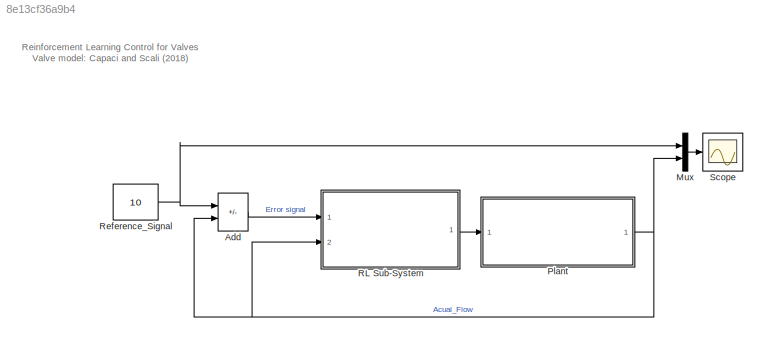
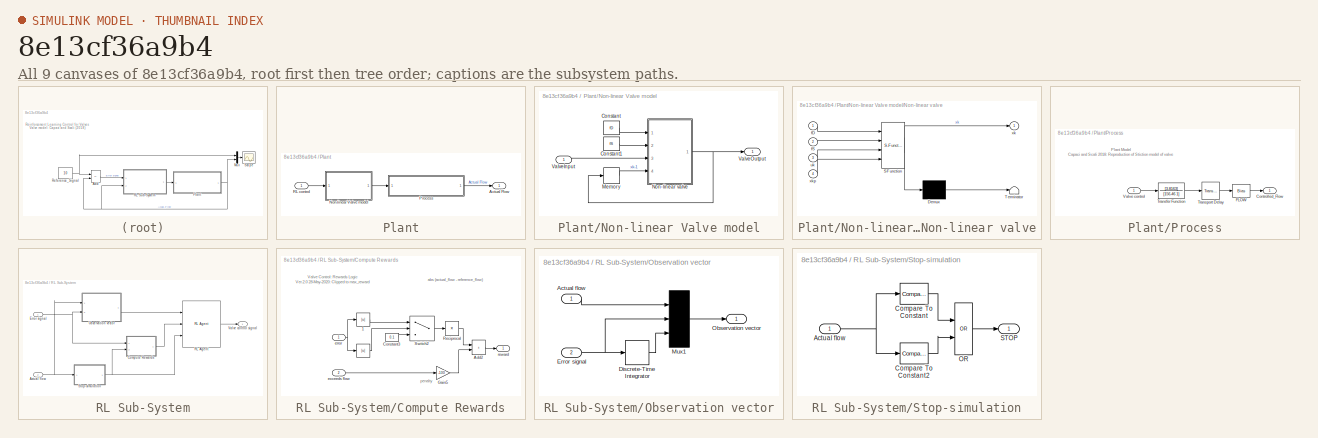
[diagram: thumbnail index - all 9 canvases of the model, root first then tree order]
MODEL slx_8e13cf36a9b4
KIND model
CONFIG AbsTol = auto
CONFIG EnableMultiTasking = off
CONFIG FixedStep = auto
CONFIG MaxStep = auto
CONFIG MinStep = auto
CONFIG RelTol = 1e-3
CONFIG SampleTimeConstraint = Unconstrained
CONFIG SolverName = VariableStepAuto
CONFIG StartTime = 0.0
CONFIG StopTime = 2000
BLOCK [Sum] Add
  IconShape = rectangular
  Inputs = +-
  Ports = [2, 1]
BLOCK [Mux] Mux
  DisplayOption = bar
  Inputs = 2
  Ports = [2, 1]
BLOCK [SubSystem] Plant
  Ports = [1, 1]
  RequestExecContextInheritance = off
BLOCK [Outport] Plant/Actual Flow
  VectorParamsAs1DForOutWhenUnconnected = off
BLOCK [SubSystem] Plant/Non-linear Valve model
  Ports = [1, 1]
  RequestExecContextInheritance = off
BLOCK [Constant] Plant/Non-linear Valve model/Constant
  Value = fD
BLOCK [Constant] Plant/Non-linear Valve model/Constant1
  Value = fS
BLOCK [Memory] Plant/Non-linear Valve model/Memory
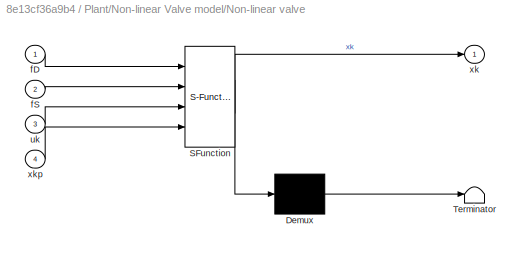
BLOCK [SubSystem] Plant/Non-linear Valve model/Non-linear valve
  ErrorFcn = Stateflow.Translate.translate
  PermitHierarchicalResolution = ExplicitOnly
  Ports = [4, 1]
  RequestExecContextInheritance = off
  SFBlockType = MATLAB Function
  TreatAsAtomicUnit = on
BLOCK [Demux] Plant/Non-linear Valve model/Non-linear valve/ Demux 
  Outputs = 1
  Ports = [1, 1]
BLOCK [S-Function] Plant/Non-linear Valve model/Non-linear valve/ SFunction 
  EnableBusSupport = on
  FunctionName = sf_sfun
  PortCounts = [4 2]
  Ports = [4, 2]
  SFcnIsStateOwnerBlock = off
  SFunctionDeploymentMode = off
  Tag = Stateflow S-Function 2
BLOCK [Terminator] Plant/Non-linear Valve model/Non-linear valve/ Terminator 
BLOCK [Inport] Plant/Non-linear Valve model/Non-linear valve/fD
BLOCK [Inport] Plant/Non-linear Valve model/Non-linear valve/fS
  Port = 2
BLOCK [Inport] Plant/Non-linear Valve model/Non-linear valve/uk
  Port = 3
BLOCK [Outport] Plant/Non-linear Valve model/Non-linear valve/xk
  VectorParamsAs1DForOutWhenUnconnected = off
BLOCK [Inport] Plant/Non-linear Valve model/Non-linear valve/xkp
  Port = 4
BLOCK [Inport] Plant/Non-linear Valve model/ValveInput
BLOCK [Outport] Plant/Non-linear Valve model/ValveOutput
  VectorParamsAs1DForOutWhenUnconnected = off
BLOCK [SubSystem] Plant/Process
  Ports = [1, 1]
  RequestExecContextInheritance = off
BLOCK [Outport] Plant/Process/Controlled_Flow
  VectorParamsAs1DForOutWhenUnconnected = off
BLOCK [Bias] Plant/Process/FLOW
  SaturateOnIntegerOverflow = off
BLOCK [TransferFcn] Plant/Process/Transfer Function
  Denominator = [156.46 1]
  Numerator = [3.8163]
BLOCK [TransportDelay] Plant/Process/Transport Delay 
  DelayTime = TIME_DELAY
  Ports = [1, 1]
BLOCK [Inport] Plant/Process/Valve control
BLOCK [Inport] Plant/RL control
BLOCK [SubSystem] RL Sub-System
  Ports = [2, 1]
  RequestExecContextInheritance = off
BLOCK [Inport] RL Sub-System/Actual flow
  Port = 2
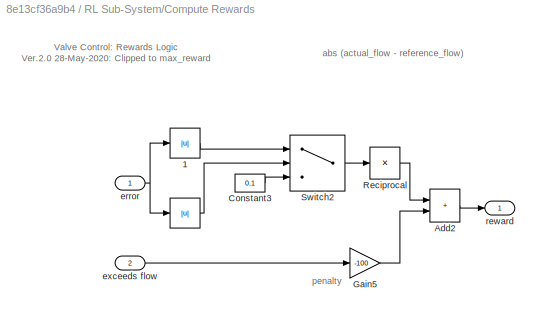
BLOCK [SubSystem] RL Sub-System/Compute Rewards
  Ports = [2, 1]
  RequestExecContextInheritance = off
BLOCK [Abs] RL Sub-System/Compute Rewards/ 
  SaturateOnIntegerOverflow = off
BLOCK [Abs] RL Sub-System/Compute Rewards/ 1
  SaturateOnIntegerOverflow = off
BLOCK [Sum] RL Sub-System/Compute Rewards/Add2
  IconShape = rectangular
  Ports = [2, 1]
BLOCK [Constant] RL Sub-System/Compute Rewards/Constant3
  Value = 0.1
BLOCK [Gain] RL Sub-System/Compute Rewards/Gain5
  Gain = -100
BLOCK [Product] RL Sub-System/Compute Rewards/Reciprocal
  Inputs = /
  Ports = [1, 1]
BLOCK [Switch] RL Sub-System/Compute Rewards/Switch2
  Criteria = u2 > Threshold
  InputSameDT = off
  SaturateOnIntegerOverflow = off
  Threshold = 0.1
BLOCK [Inport] RL Sub-System/Compute Rewards/error
BLOCK [Inport] RL Sub-System/Compute Rewards/exceeds flow
  Port = 2
BLOCK [Outport] RL Sub-System/Compute Rewards/reward
  VectorParamsAs1DForOutWhenUnconnected = off
BLOCK [Inport] RL Sub-System/Error signal
BLOCK [SubSystem] RL Sub-System/Observation vector
  Ports = [2, 1]
  RequestExecContextInheritance = off
BLOCK [Inport] RL Sub-System/Observation vector/Actual flow
BLOCK [DiscreteIntegrator] RL Sub-System/Observation vector/Discrete-Time Integrator
  ICPrevOutput = DiscIntNeverNeededParam
  ICPrevScaledInput = DiscIntNeverNeededParam
  InitialConditionSetting = Auto
  Ports = [1, 1]
  SampleTime = Ts
BLOCK [Inport] RL Sub-System/Observation vector/Error signal
  Port = 2
BLOCK [Mux] RL Sub-System/Observation vector/Mux1
  DisplayOption = bar
  Inputs = 3
  Ports = [3, 1]
BLOCK [Outport] RL Sub-System/Observation vector/Observation vector
  VectorParamsAs1DForOutWhenUnconnected = off
BLOCK [Reference] RL Sub-System/RL Agent  REF=rllib/RL Agent
  Ports = [3, 1]
  SourceBlock = rllib/RL Agent
  SourceProductBaseCode = RL
  SourceType = RL Agent
BLOCK [SubSystem] RL Sub-System/Stop-simulation
  Ports = [1, 1]
  RequestExecContextInheritance = off
BLOCK [Inport] RL Sub-System/Stop-simulation/Actual flow
BLOCK [Reference] RL Sub-System/Stop-simulation/Compare To Constant  REF=simulink/Logic and Bit
Operations/Compare
To Constant
  Ports = [1, 1]
  SourceBlock = simulink/Logic and Bit\nOperations/Compare\nTo Constant
  SourceProductBaseCode = SL
  SourceType = Compare To Constant
BLOCK [Reference] RL Sub-System/Stop-simulation/Compare To Constant2  REF=simulink/Logic and Bit
Operations/Compare
To Constant
  Ports = [1, 1]
  SourceBlock = simulink/Logic and Bit\nOperations/Compare\nTo Constant
  SourceProductBaseCode = SL
  SourceType = Compare To Constant
BLOCK [Logic] RL Sub-System/Stop-simulation/OR
  AllPortsSameDT = off
  IconShape = distinctive
  Operator = OR
  OutDataTypeStr = boolean
  Ports = [2, 1]
BLOCK [Outport] RL Sub-System/Stop-simulation/STOP
  VectorParamsAs1DForOutWhenUnconnected = off
BLOCK [Outport] RL Sub-System/Valve control signal
  VectorParamsAs1DForOutWhenUnconnected = off
BLOCK [Constant] Reference_Signal
  Value = 10
BLOCK [Scope] Scope
  Floating = off
  NumInputPorts = 1
  Ports = [1]
  ScopeSpecificationString = Simulink.scopes.TimeScopeBlockCfg('CurrentConfiguration', extmgr.ConfigurationSet(extmgr.Configuration('Core','General UI',true,'FigureColor',[0.941176470588235 0.941176470588235 0.941176470588235],'ShowStatusbar',false),extmgr.Configuration('Core','Source UI',true),extmgr.Configuration('Sources','WiredSimulink',true),extmgr.Configuration('Visuals','Time Domain',true,'SerializedDisplays',{struct('...<+2124ch>
ANNOTATION (root): Reinforcement Learning Control for Valves Valve model: Capaci and Scali (2018)
ANNOTATION Plant/Process: Plant Model Capaci and Scali 2018 : Reproduction of Stiction model of valve
ANNOTATION RL Sub-System/Compute Rewards: Valve Control: Rewards Logic Ver.2.0 28-May-2020: Clipped to max_reward
ANNOTATION RL Sub-System/Compute Rewards: abs (actual_flow - reference_flow)
ANNOTATION RL Sub-System/Compute Rewards: penalty
LINE Add:1 -> RL Sub-System:1
LINE Mux:1 -> Scope:1
LINE Plant/Non-linear Valve model/Constant1:1 -> Plant/Non-linear Valve model/Non-linear valve:2
LINE Plant/Non-linear Valve model/Constant:1 -> Plant/Non-linear Valve model/Non-linear valve:1
LINE Plant/Non-linear Valve model/Memory:1 -> Plant/Non-linear Valve model/Non-linear valve:4
NET Plant/Non-linear Valve model/Non-linear valve:1 -> Plant/Non-linear Valve model/Memory:1, Plant/Non-linear Valve model/ValveOutput:1
LINE Plant/Non-linear Valve model/ValveInput:1 -> Plant/Non-linear Valve model/Non-linear valve:3
LINE Plant/Non-linear Valve model:1 -> Plant/Process:1
LINE Plant/Process/FLOW:1 -> Plant/Process/Controlled_Flow:1
LINE Plant/Process/Transfer Function:1 -> Plant/Process/Transport Delay :1
LINE Plant/Process/Transport Delay :1 -> Plant/Process/FLOW:1
LINE Plant/Process/Valve control:1 -> Plant/Process/Transfer Function:1
LINE Plant/Process:1 -> Plant/Actual Flow:1
LINE Plant/RL control:1 -> Plant/Non-linear Valve model:1
NET Plant:1 -> Add:2, Mux:2, RL Sub-System:2
NET RL Sub-System/Actual flow:1 -> RL Sub-System/Observation vector:1, RL Sub-System/Stop-simulation:1
LINE RL Sub-System/Compute Rewards/ 1:1 -> RL Sub-System/Compute Rewards/Switch2:1
LINE RL Sub-System/Compute Rewards/ :1 -> RL Sub-System/Compute Rewards/Switch2:2
LINE RL Sub-System/Compute Rewards/Add2:1 -> RL Sub-System/Compute Rewards/reward:1
LINE RL Sub-System/Compute Rewards/Constant3:1 -> RL Sub-System/Compute Rewards/Switch2:3
LINE RL Sub-System/Compute Rewards/Gain5:1 -> RL Sub-System/Compute Rewards/Add2:2
LINE RL Sub-System/Compute Rewards/Reciprocal:1 -> RL Sub-System/Compute Rewards/Add2:1
LINE RL Sub-System/Compute Rewards/Switch2:1 -> RL Sub-System/Compute Rewards/Reciprocal:1
NET RL Sub-System/Compute Rewards/error:1 -> RL Sub-System/Compute Rewards/ 1:1, RL Sub-System/Compute Rewards/ :1
LINE RL Sub-System/Compute Rewards/exceeds flow:1 -> RL Sub-System/Compute Rewards/Gain5:1
LINE RL Sub-System/Compute Rewards:1 -> RL Sub-System/RL Agent:2
NET RL Sub-System/Error signal:1 -> RL Sub-System/Compute Rewards:1, RL Sub-System/Observation vector:2
LINE RL Sub-System/Observation vector/Actual flow:1 -> RL Sub-System/Observation vector/Mux1:1
LINE RL Sub-System/Observation vector/Discrete-Time Integrator:1 -> RL Sub-System/Observation vector/Mux1:3
NET RL Sub-System/Observation vector/Error signal:1 -> RL Sub-System/Observation vector/Discrete-Time Integrator:1, RL Sub-System/Observation vector/Mux1:2
LINE RL Sub-System/Observation vector/Mux1:1 -> RL Sub-System/Observation vector/Observation vector:1
LINE RL Sub-System/Observation vector:1 -> RL Sub-System/RL Agent:1
LINE RL Sub-System/RL Agent:1 -> RL Sub-System/Valve control signal:1
NET RL Sub-System/Stop-simulation/Actual flow:1 -> RL Sub-System/Stop-simulation/Compare To Constant2:1, RL Sub-System/Stop-simulation/Compare To Constant:1
LINE RL Sub-System/Stop-simulation/Compare To Constant2:1 -> RL Sub-System/Stop-simulation/OR:2
LINE RL Sub-System/Stop-simulation/Compare To Constant:1 -> RL Sub-System/Stop-simulation/OR:1
LINE RL Sub-System/Stop-simulation/OR:1 -> RL Sub-System/Stop-simulation/STOP:1
NET RL Sub-System/Stop-simulation:1 -> RL Sub-System/Compute Rewards:2, RL Sub-System/RL Agent:3
LINE RL Sub-System:1 -> Plant:1
NET Reference_Signal:1 -> Add:1, Mux:1
note: NET lines group one-source signal fan-out (src -> all destinations, sorted); 1:1 wires keep LINE
CHART Plant/Non-linear Valve model/Non-linear valve states=1 transitions=1
  STATE_LABEL 'eML_blk_kernel()'
  STATE_LABEL 'SCRIPT:\nfunction xk = fcn(fD, fS, uk, xkp)\n% -------------------------------------------------------------------------\n% TRAINING circuit for DDPG-RL Agent | Plant Model (RLVC4 | 09-Oct-2020)\n% Non-Linear valve model: Capaci and Scali (2018)\n% -------------------------------------------------------------------------\n% uk - fD   if uk - xk−1 > fS\n% uk + fD   if uk - xk−1 < -fS\n% xk - 1    if |uk - ...<+1092ch>'
CHART  states=0 transitions=0
